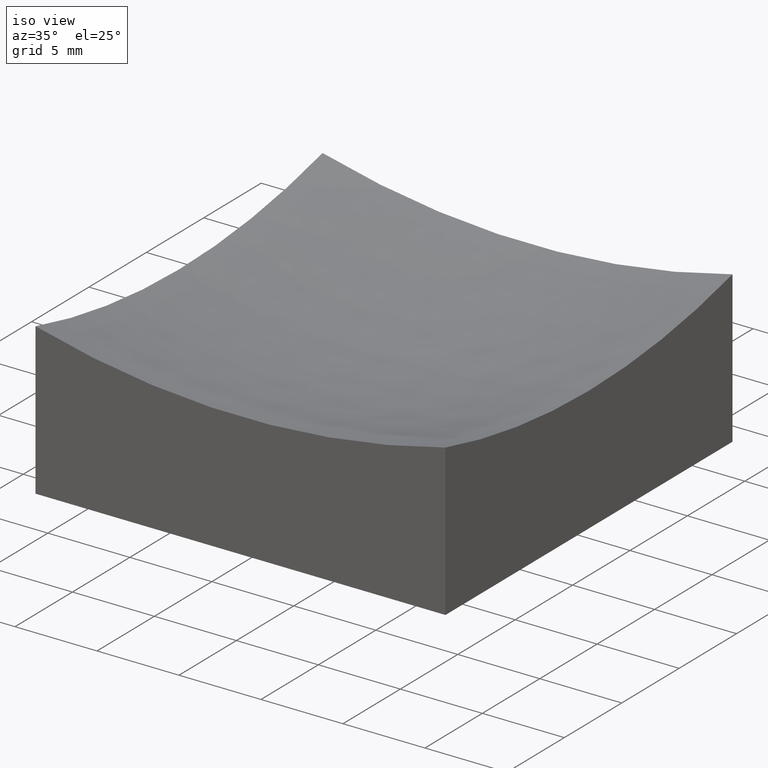
[diagram: clean part render]
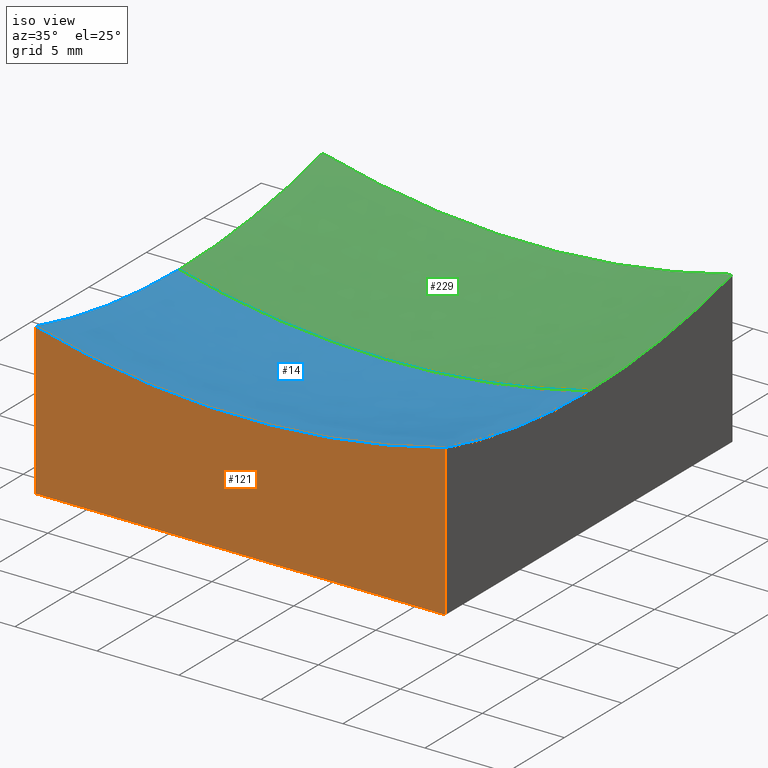
[diagram: same view with three faces highlighted in distinct colors, each labeled with its STEP entity id]
A machine part, iso view with three faces highlighted in distinct colors.
Their STEP definitions:

[orange] entity #121 — the highlighted planar face has unit normal (0, 1, 0).
#1 = VECTOR ( 'NONE', #69, 1000.000000000000000 ) ;
#3 = VERTEX_POINT ( 'NONE', #133 ) ;
#6 = CARTESIAN_POINT ( 'NONE',  ( -12.49999999999999645, -12.50000000000000000, 0.0000000000000000000 ) ) ;
#11 = CARTESIAN_POINT ( 'NONE',  ( 12.50000000000000355, -12.50000000000000000, 20.00000000000000000 ) ) ;
#15 = DIRECTION ( 'NONE',  ( 0.0000000000000000000, 1.000000000000000000, 0.0000000000000000000 ) ) ;
#16 = DIRECTION ( 'NONE',  ( -0.0000000000000000000, -0.0000000000000000000, -1.000000000000000000 ) ) ;
#24 = VERTEX_POINT ( 'NONE', #239 ) ;
#43 = EDGE_CURVE ( 'NONE', #3, #24, #118, .T. ) ;
#50 = EDGE_LOOP ( 'NONE', ( #204, #218, #145, #183 ) ) ;
#63 = CARTESIAN_POINT ( 'NONE',  ( -12.49999999999999645, -12.50000000000000000, 9.229282665325730051 ) ) ;
#69 = DIRECTION ( 'NONE',  ( 1.000000000000000000, 0.0000000000000000000, 0.0000000000000000000 ) ) ;
#71 = LINE ( 'NONE', #6, #1 ) ;
#79 = DIRECTION ( 'NONE',  ( 0.0000000000000000000, 0.0000000000000000000, 1.000000000000000000 ) ) ;
#94 = PLANE ( 'NONE',  #193 ) ;
#97 = CARTESIAN_POINT ( 'NONE',  ( -12.49999999999999645, -12.50000000000000000, 20.00000000000000000 ) ) ;
#99 = CARTESIAN_POINT ( 'NONE',  ( 6.858022075225178552E-15, -12.50000000000000000, 56.00000000000000000 ) ) ;
#101 = EDGE_CURVE ( 'NONE', #109, #116, #119, .T. ) ;
#109 = VERTEX_POINT ( 'NONE', #63 ) ;
#111 = EDGE_CURVE ( 'NONE', #3, #109, #203, .T. ) ;
#116 = VERTEX_POINT ( 'NONE', #178 ) ;
#118 = LINE ( 'NONE', #11, #130 ) ;
#119 = LINE ( 'NONE', #97, #244 ) ;
#121 = ADVANCED_FACE ( 'NONE', ( #249 ), #94, .F. ) ;
#130 = VECTOR ( 'NONE', #192, 1000.000000000000000 ) ;
#133 = CARTESIAN_POINT ( 'NONE',  ( 12.50000000000000355, -12.50000000000000000, 9.229282665325730051 ) ) ;
#145 = ORIENTED_EDGE ( 'NONE', *, *, #101, .T. ) ;
#158 = DIRECTION ( 'NONE',  ( 0.0000000000000000000, -0.0000000000000000000, 1.000000000000000000 ) ) ;
#178 = CARTESIAN_POINT ( 'NONE',  ( -12.49999999999999645, -12.50000000000000000, 0.0000000000000000000 ) ) ;
#183 = ORIENTED_EDGE ( 'NONE', *, *, #247, .T. ) ;
#192 = DIRECTION ( 'NONE',  ( -0.0000000000000000000, -0.0000000000000000000, -1.000000000000000000 ) ) ;
#193 = AXIS2_PLACEMENT_3D ( 'NONE', #227, #15, #158 ) ;
#194 = DIRECTION ( 'NONE',  ( 0.0000000000000000000, 1.000000000000000000, 0.0000000000000000000 ) ) ;
#203 = CIRCLE ( 'NONE', #232, 48.41229182759270344 ) ;
#204 = ORIENTED_EDGE ( 'NONE', *, *, #43, .F. ) ;
#218 = ORIENTED_EDGE ( 'NONE', *, *, #111, .T. ) ;
#227 = CARTESIAN_POINT ( 'NONE',  ( -12.49999999999999645, -12.50000000000000000, 20.00000000000000000 ) ) ;
#232 = AXIS2_PLACEMENT_3D ( 'NONE', #99, #194, #79 ) ;
#239 = CARTESIAN_POINT ( 'NONE',  ( 12.50000000000000355, -12.50000000000000000, 0.0000000000000000000 ) ) ;
#244 = VECTOR ( 'NONE', #16, 1000.000000000000000 ) ;
#247 = EDGE_CURVE ( 'NONE', #116, #24, #71, .T. ) ;
#249 = FACE_OUTER_BOUND ( 'NONE', #50, .T. ) ;

[blue] entity #14 — the highlighted spherical surface has radius 50 mm.
#3 = VERTEX_POINT ( 'NONE', #133 ) ;
#8 = ORIENTED_EDGE ( 'NONE', *, *, #23, .T. ) ;
#10 = DIRECTION ( 'NONE',  ( 1.000000000000000000, 0.0000000000000000000, 0.0000000000000000000 ) ) ;
#12 = CIRCLE ( 'NONE', #17, 50.00000000000000000 ) ;
#14 = ADVANCED_FACE ( 'NONE', ( #32 ), #189, .F. ) ;
#17 = AXIS2_PLACEMENT_3D ( 'NONE', #217, #187, #167 ) ;
#23 = EDGE_CURVE ( 'NONE', #168, #159, #73, .T. ) ;
#32 = FACE_OUTER_BOUND ( 'NONE', #114, .T. ) ;
#35 = DIRECTION ( 'NONE',  ( -0.0000000000000000000, 1.000000000000000000, 0.0000000000000000000 ) ) ;
#41 = CIRCLE ( 'NONE', #77, 48.41229182759271055 ) ;
#45 = DIRECTION ( 'NONE',  ( -1.433291761649752693E-16, 1.000000000000000000, 0.0000000000000000000 ) ) ;
#46 = CARTESIAN_POINT ( 'NONE',  ( 12.50000000000000000, -9.629649721936179265E-32, 7.587708172407285012 ) ) ;
#49 = AXIS2_PLACEMENT_3D ( 'NONE', #222, #248, #135 ) ;
#62 = AXIS2_PLACEMENT_3D ( 'NONE', #216, #35, #10 ) ;
#63 = CARTESIAN_POINT ( 'NONE',  ( -12.49999999999999645, -12.50000000000000000, 9.229282665325730051 ) ) ;
#64 = EDGE_CURVE ( 'NONE', #3, #190, #147, .T. ) ;
#73 = CIRCLE ( 'NONE', #220, 50.00000000000000000 ) ;
#77 = AXIS2_PLACEMENT_3D ( 'NONE', #87, #236, #45 ) ;
#79 = DIRECTION ( 'NONE',  ( 0.0000000000000000000, 0.0000000000000000000, 1.000000000000000000 ) ) ;
#87 = CARTESIAN_POINT ( 'NONE',  ( -12.49999999999999822, -1.734723475976807883E-15, 56.00000000000000000 ) ) ;
#99 = CARTESIAN_POINT ( 'NONE',  ( 6.858022075225178552E-15, -12.50000000000000000, 56.00000000000000000 ) ) ;
#109 = VERTEX_POINT ( 'NONE', #63 ) ;
#111 = EDGE_CURVE ( 'NONE', #3, #109, #203, .T. ) ;
#112 = ORIENTED_EDGE ( 'NONE', *, *, #64, .T. ) ;
#114 = EDGE_LOOP ( 'NONE', ( #209, #8, #132, #215, #112 ) ) ;
#132 = ORIENTED_EDGE ( 'NONE', *, *, #171, .F. ) ;
#133 = CARTESIAN_POINT ( 'NONE',  ( 12.50000000000000355, -12.50000000000000000, 9.229282665325730051 ) ) ;
#135 = DIRECTION ( 'NONE',  ( -1.433291761649752447E-16, 1.000000000000000000, 0.0000000000000000000 ) ) ;
#147 = CIRCLE ( 'NONE', #49, 48.41229182759271765 ) ;
#152 = DIRECTION ( 'NONE',  ( -1.000000000000000000, 1.224646799147353207E-16, 0.0000000000000000000 ) ) ;
#159 = VERTEX_POINT ( 'NONE', #179 ) ;
#167 = DIRECTION ( 'NONE',  ( 0.0000000000000000000, 0.0000000000000000000, -1.000000000000000000 ) ) ;
#168 = VERTEX_POINT ( 'NONE', #214 ) ;
#171 = EDGE_CURVE ( 'NONE', #109, #159, #41, .T. ) ;
#172 = CARTESIAN_POINT ( 'NONE',  ( 6.858022075225178552E-15, 0.0000000000000000000, 56.00000000000000000 ) ) ;
#179 = CARTESIAN_POINT ( 'NONE',  ( -12.49999999999999822, 1.530808498934192113E-15, 7.587708172407288565 ) ) ;
#187 = DIRECTION ( 'NONE',  ( 0.0000000000000000000, -1.000000000000000000, 0.0000000000000000000 ) ) ;
#189 = SPHERICAL_SURFACE ( 'NONE', #62, 50.00000000000000000 ) ;
#190 = VERTEX_POINT ( 'NONE', #46 ) ;
#194 = DIRECTION ( 'NONE',  ( 0.0000000000000000000, 1.000000000000000000, 0.0000000000000000000 ) ) ;
#203 = CIRCLE ( 'NONE', #232, 48.41229182759270344 ) ;
#209 = ORIENTED_EDGE ( 'NONE', *, *, #235, .F. ) ;
#214 = CARTESIAN_POINT ( 'NONE',  ( 9.944968777644552630E-15, 0.0000000000000000000, 5.999999999999998224 ) ) ;
#215 = ORIENTED_EDGE ( 'NONE', *, *, #111, .F. ) ;
#216 = CARTESIAN_POINT ( 'NONE',  ( 6.858022075225178552E-15, 0.0000000000000000000, 56.00000000000000000 ) ) ;
#217 = CARTESIAN_POINT ( 'NONE',  ( 6.858022075225178552E-15, 0.0000000000000000000, 56.00000000000000000 ) ) ;
#220 = AXIS2_PLACEMENT_3D ( 'NONE', #172, #241, #152 ) ;
#222 = CARTESIAN_POINT ( 'NONE',  ( 12.50000000000000178, 1.734723475976806503E-15, 56.00000000000000000 ) ) ;
#232 = AXIS2_PLACEMENT_3D ( 'NONE', #99, #194, #79 ) ;
#235 = EDGE_CURVE ( 'NONE', #168, #190, #12, .T. ) ;
#236 = DIRECTION ( 'NONE',  ( 1.000000000000000000, 1.387778780781445676E-16, -0.0000000000000000000 ) ) ;
#241 = DIRECTION ( 'NONE',  ( 1.224646799147353207E-16, 1.000000000000000000, 6.203988320343982129E-35 ) ) ;
#248 = DIRECTION ( 'NONE',  ( 1.000000000000000000, 1.387778780781445676E-16, -0.0000000000000000000 ) ) ;

[green] entity #229 — the highlighted spherical surface has radius 50 mm.
#2 = FACE_OUTER_BOUND ( 'NONE', #224, .T. ) ;
#12 = CIRCLE ( 'NONE', #17, 50.00000000000000000 ) ;
#17 = AXIS2_PLACEMENT_3D ( 'NONE', #217, #187, #167 ) ;
#20 = DIRECTION ( 'NONE',  ( 0.0000000000000000000, 1.000000000000000000, 0.0000000000000000000 ) ) ;
#22 = DIRECTION ( 'NONE',  ( -0.0000000000000000000, 1.000000000000000000, 0.0000000000000000000 ) ) ;
#23 = EDGE_CURVE ( 'NONE', #168, #159, #73, .T. ) ;
#38 = CARTESIAN_POINT ( 'NONE',  ( -12.50000000000000000, 12.50000000000000000, 9.229282665325730051 ) ) ;
#42 = DIRECTION ( 'NONE',  ( -1.433291761649752693E-16, 1.000000000000000000, 0.0000000000000000000 ) ) ;
#46 = CARTESIAN_POINT ( 'NONE',  ( 12.50000000000000000, -9.629649721936179265E-32, 7.587708172407285012 ) ) ;
#70 = ORIENTED_EDGE ( 'NONE', *, *, #235, .T. ) ;
#73 = CIRCLE ( 'NONE', #220, 50.00000000000000000 ) ;
#83 = CIRCLE ( 'NONE', #86, 48.41229182759271765 ) ;
#86 = AXIS2_PLACEMENT_3D ( 'NONE', #174, #245, #228 ) ;
#102 = DIRECTION ( 'NONE',  ( 0.0000000000000000000, 0.0000000000000000000, 1.000000000000000000 ) ) ;
#107 = CARTESIAN_POINT ( 'NONE',  ( 6.858022075225178552E-15, 0.0000000000000000000, 56.00000000000000000 ) ) ;
#123 = SPHERICAL_SURFACE ( 'NONE', #124, 50.00000000000000000 ) ;
#124 = AXIS2_PLACEMENT_3D ( 'NONE', #107, #22, #200 ) ;
#127 = EDGE_CURVE ( 'NONE', #190, #182, #83, .T. ) ;
#142 = EDGE_CURVE ( 'NONE', #159, #169, #231, .T. ) ;
#149 = ORIENTED_EDGE ( 'NONE', *, *, #127, .T. ) ;
#152 = DIRECTION ( 'NONE',  ( -1.000000000000000000, 1.224646799147353207E-16, 0.0000000000000000000 ) ) ;
#155 = EDGE_CURVE ( 'NONE', #182, #169, #173, .T. ) ;
#159 = VERTEX_POINT ( 'NONE', #179 ) ;
#163 = CARTESIAN_POINT ( 'NONE',  ( 12.50000000000000000, 12.50000000000000000, 9.229282665325730051 ) ) ;
#166 = ORIENTED_EDGE ( 'NONE', *, *, #142, .F. ) ;
#167 = DIRECTION ( 'NONE',  ( 0.0000000000000000000, 0.0000000000000000000, -1.000000000000000000 ) ) ;
#168 = VERTEX_POINT ( 'NONE', #214 ) ;
#169 = VERTEX_POINT ( 'NONE', #38 ) ;
#170 = ORIENTED_EDGE ( 'NONE', *, *, #155, .T. ) ;
#172 = CARTESIAN_POINT ( 'NONE',  ( 6.858022075225178552E-15, 0.0000000000000000000, 56.00000000000000000 ) ) ;
#173 = CIRCLE ( 'NONE', #185, 48.41229182759270344 ) ;
#174 = CARTESIAN_POINT ( 'NONE',  ( 12.50000000000000178, 1.734723475976806503E-15, 56.00000000000000000 ) ) ;
#179 = CARTESIAN_POINT ( 'NONE',  ( -12.49999999999999822, 1.530808498934192113E-15, 7.587708172407288565 ) ) ;
#182 = VERTEX_POINT ( 'NONE', #163 ) ;
#185 = AXIS2_PLACEMENT_3D ( 'NONE', #198, #20, #102 ) ;
#186 = ORIENTED_EDGE ( 'NONE', *, *, #23, .F. ) ;
#187 = DIRECTION ( 'NONE',  ( 0.0000000000000000000, -1.000000000000000000, 0.0000000000000000000 ) ) ;
#190 = VERTEX_POINT ( 'NONE', #46 ) ;
#198 = CARTESIAN_POINT ( 'NONE',  ( 6.858022075225178552E-15, 12.50000000000000000, 56.00000000000000000 ) ) ;
#200 = DIRECTION ( 'NONE',  ( 1.000000000000000000, 0.0000000000000000000, 0.0000000000000000000 ) ) ;
#214 = CARTESIAN_POINT ( 'NONE',  ( 9.944968777644552630E-15, 0.0000000000000000000, 5.999999999999998224 ) ) ;
#217 = CARTESIAN_POINT ( 'NONE',  ( 6.858022075225178552E-15, 0.0000000000000000000, 56.00000000000000000 ) ) ;
#220 = AXIS2_PLACEMENT_3D ( 'NONE', #172, #241, #152 ) ;
#224 = EDGE_LOOP ( 'NONE', ( #186, #70, #149, #170, #166 ) ) ;
#228 = DIRECTION ( 'NONE',  ( -1.433291761649752447E-16, 1.000000000000000000, 0.0000000000000000000 ) ) ;
#229 = ADVANCED_FACE ( 'NONE', ( #2 ), #123, .F. ) ;
#230 = DIRECTION ( 'NONE',  ( 1.000000000000000000, 1.387778780781445676E-16, -0.0000000000000000000 ) ) ;
#231 = CIRCLE ( 'NONE', #242, 48.41229182759271055 ) ;
#235 = EDGE_CURVE ( 'NONE', #168, #190, #12, .T. ) ;
#241 = DIRECTION ( 'NONE',  ( 1.224646799147353207E-16, 1.000000000000000000, 6.203988320343982129E-35 ) ) ;
#242 = AXIS2_PLACEMENT_3D ( 'NONE', #246, #230, #42 ) ;
#245 = DIRECTION ( 'NONE',  ( 1.000000000000000000, 1.387778780781445676E-16, -0.0000000000000000000 ) ) ;
#246 = CARTESIAN_POINT ( 'NONE',  ( -12.49999999999999822, -1.734723475976807883E-15, 56.00000000000000000 ) ) ;